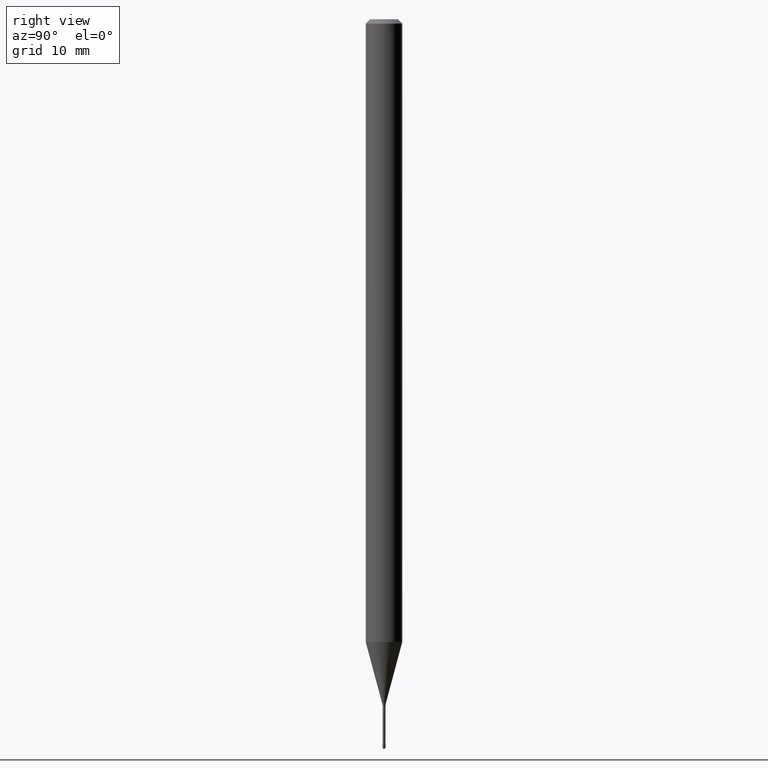
[diagram: clean part render]
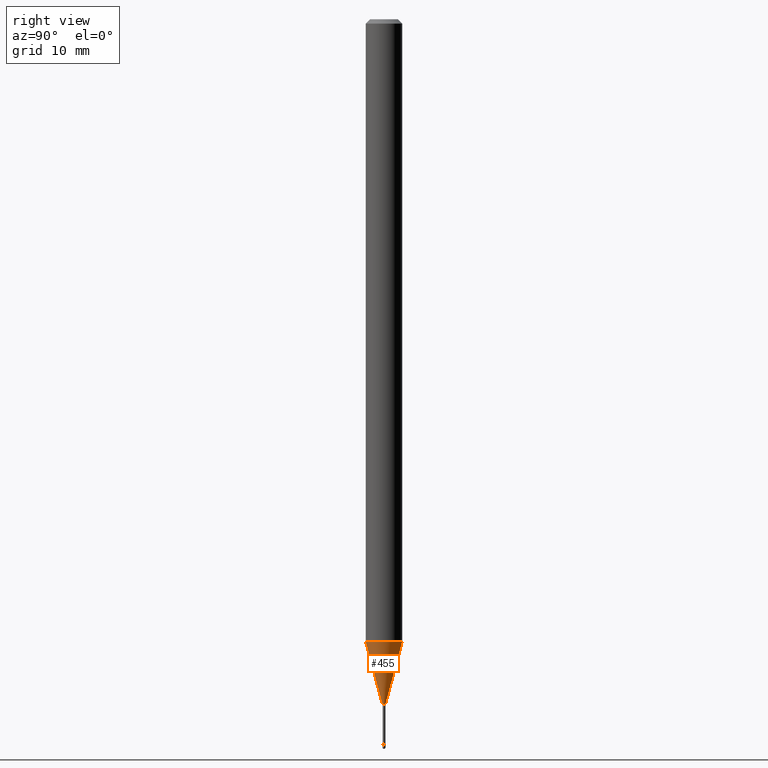
[diagram: same view with one face highlighted and labeled with its STEP entity id]
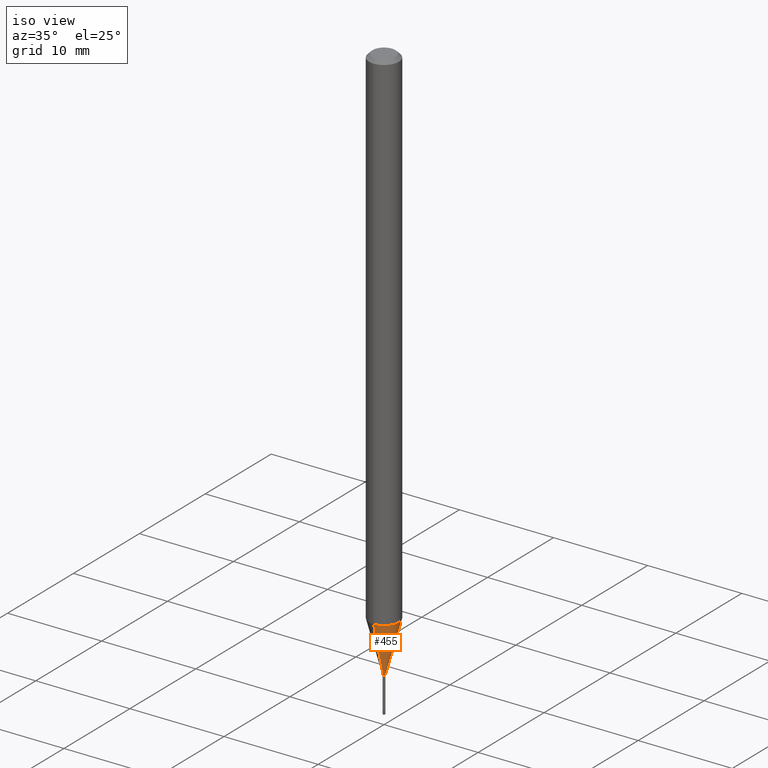
[diagram: same view with one face highlighted and labeled with its STEP entity id]
A machine part, right view. The second image highlights one B-rep face of the part: STEP entity #455.
A second angle (iso view) of the same face is appended — the face is thin or edge-on in the first view.
In plain terms, the highlighted conical surface has half-angle 15 deg.
Its self-contained STEP definition (entity closure, byte-faithful):
#18 = CARTESIAN_POINT ( 'NONE',  ( -4.364351673553394567E-16, -0.06250000000000745237, -2.134287463322519063 ) ) ;
#26 = DIRECTION ( 'NONE',  ( 1.839019923739599526E-15, 0.2588190451025248473, 0.9659258262890673130 ) ) ;
#31 = EDGE_LOOP ( 'NONE', ( #541, #393, #482, #44 ) ) ;
#40 = DIRECTION ( 'NONE',  ( -6.982962677686265922E-15, -1.000000000000000000, 0.000000000000000000 ) ) ;
#44 = ORIENTED_EDGE ( 'NONE', *, *, #359, .F. ) ;
#58 = CARTESIAN_POINT ( 'NONE',  ( -3.638900483451488413E-17, -0.005211112605672221960, -2.348092501787272912 ) ) ;
#68 = DIRECTION ( 'NONE',  ( -2.444331714462359119E-29, 3.493109718909404657E-15, 1.000000000000000000 ) ) ;
#76 = CARTESIAN_POINT ( 'NONE',  ( 5.216906534378652814E-29, -7.455300281078391221E-15, -2.134287463322519507 ) ) ;
#81 = VERTEX_POINT ( 'NONE', #58 ) ;
#86 = CONICAL_SURFACE ( 'NONE', #470, 0.005211112605664020188, 0.2617993877991501295 ) ;
#102 = AXIS2_PLACEMENT_3D ( 'NONE', #76, #456, #425 ) ;
#103 = DIRECTION ( 'NONE',  ( -1.807323732225328562E-15, -0.2588190451025179639, 0.9659258262890689783 ) ) ;
#157 = LINE ( 'NONE', #459, #318 ) ;
#163 = EDGE_CURVE ( 'NONE', #81, #545, #386, .T. ) ;
#183 = CIRCLE ( 'NONE', #102, 0.06250000000000000000 ) ;
#234 = LINE ( 'NONE', #493, #442 ) ;
#239 = DIRECTION ( 'NONE',  ( -2.444331714462359119E-29, 3.493109718909404657E-15, 1.000000000000000000 ) ) ;
#251 = AXIS2_PLACEMENT_3D ( 'NONE', #369, #68, #40 ) ;
#293 = CARTESIAN_POINT ( 'NONE',  ( 5.739516970609894167E-29, -8.202144738891422775E-15, -2.348092501787272912 ) ) ;
#314 = EDGE_CURVE ( 'NONE', #486, #522, #183, .T. ) ;
#318 = VECTOR ( 'NONE', #26, 39.37007874015747433 ) ;
#359 = EDGE_CURVE ( 'NONE', #81, #486, #234, .T. ) ;
#362 = CARTESIAN_POINT ( 'NONE',  ( 2.405581959609985270E-16, 0.005211112605655818415, -2.348092501787272912 ) ) ;
#369 = CARTESIAN_POINT ( 'NONE',  ( 5.739516970609894167E-29, -8.202144738891422775E-15, -2.348092501787272912 ) ) ;
#386 = CIRCLE ( 'NONE', #251, 0.005211112605664020188 ) ;
#393 = ORIENTED_EDGE ( 'NONE', *, *, #492, .T. ) ;
#425 = DIRECTION ( 'NONE',  ( -6.982962677686265922E-15, -1.000000000000000000, 4.370956789862821150E-15 ) ) ;
#442 = VECTOR ( 'NONE', #103, 39.37007874015749564 ) ;
#455 = ADVANCED_FACE ( 'NONE', ( #504 ), #86, .T. ) ;
#456 = DIRECTION ( 'NONE',  ( -2.444331714462359119E-29, 3.493109718909404657E-15, 1.000000000000000000 ) ) ;
#459 = CARTESIAN_POINT ( 'NONE',  ( 3.702718207188196635E-17, 0.005211112605655818415, -2.348092501787272912 ) ) ;
#470 = AXIS2_PLACEMENT_3D ( 'NONE', #293, #239, #500 ) ;
#482 = ORIENTED_EDGE ( 'NONE', *, *, #314, .F. ) ;
#486 = VERTEX_POINT ( 'NONE', #18 ) ;
#492 = EDGE_CURVE ( 'NONE', #545, #522, #157, .T. ) ;
#493 = CARTESIAN_POINT ( 'NONE',  ( -3.638900483451488413E-17, -0.005211112605672221960, -2.348092501787272912 ) ) ;
#500 = DIRECTION ( 'NONE',  ( -6.982962677686265922E-15, -1.000000000000000000, 0.000000000000000000 ) ) ;
#504 = FACE_OUTER_BOUND ( 'NONE', #31, .T. ) ;
#510 = CARTESIAN_POINT ( 'NONE',  ( 4.440892098501145824E-16, 0.06249999999999254069, -2.134287463322519507 ) ) ;
#522 = VERTEX_POINT ( 'NONE', #510 ) ;
#541 = ORIENTED_EDGE ( 'NONE', *, *, #163, .T. ) ;
#545 = VERTEX_POINT ( 'NONE', #362 ) ;